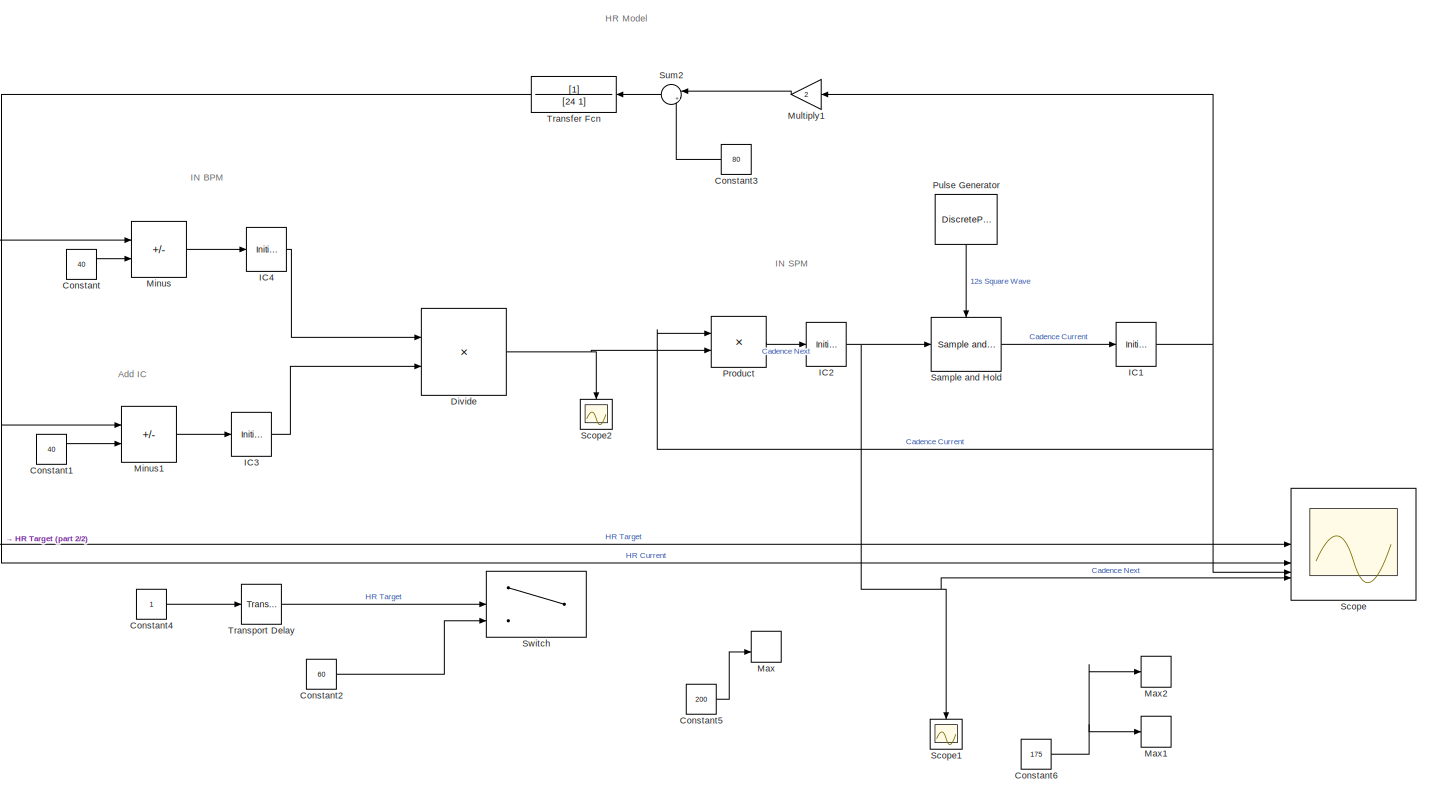
[diagram: root canvas - part 1/2, most of the canvas]
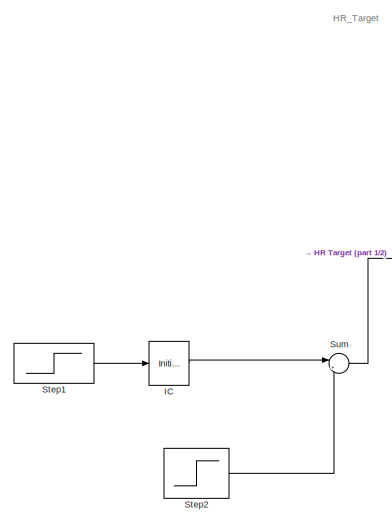
[diagram: root canvas - part 2/2, middle left region]
MODEL slx_c0230b98c511
KIND model
CONFIG AbsTol = auto
CONFIG EnableMultiTasking = off
CONFIG FixedStep = auto
CONFIG MaxStep = auto
CONFIG MinStep = auto
CONFIG RelTol = 1e-3
CONFIG SampleTimeConstraint = Unconstrained
CONFIG SolverName = VariableStepAuto
CONFIG StartTime = 0.0
CONFIG StopTime = 1000
BLOCK [Constant] Constant
  Value = 40
BLOCK [Constant] Constant1
  Value = 40
BLOCK [Constant] Constant2
  Value = 60
BLOCK [Constant] Constant3
  NameLocation = top
  Value = 80
BLOCK [Constant] Constant4
BLOCK [Constant] Constant5
  Value = 200
BLOCK [Constant] Constant6
  Value = 175
BLOCK [Product] Divide
  Inputs = */
BLOCK [InitialCondition] IC
  Value = 60
BLOCK [InitialCondition] IC1
  Value = 60
BLOCK [InitialCondition] IC2
  Value = 60
BLOCK [InitialCondition] IC3
  Value = 60
BLOCK [InitialCondition] IC4
  Value = 60
BLOCK [MinMax] Max
  Inputs = 2
BLOCK [MinMax] Max1
  Inputs = 2
BLOCK [MinMax] Max2
  Inputs = 2
BLOCK [Sum] Minus
  IconShape = rectangular
  Inputs = +-
BLOCK [Sum] Minus1
  IconShape = rectangular
  Inputs = +-
BLOCK [Gain] Multiply1
  Gain = 2
  NameLocation = top
BLOCK [Product] Product
BLOCK [DiscretePulseGenerator] Pulse Generator
  NameLocation = left
  Period = 10
  PulseType = Time based
  PulseWidth = 10
BLOCK [Reference] Sample and Hold  REF=dspsigops/Sample
and Hold
  LibrarySourceBlock = dsphdlsupportsigops/Sample\nand Hold
  SourceBlock = dspsigops/Sample\nand Hold
  SourceType = Sample and Hold
BLOCK [Scope] Scope
  Floating = off
  NumInputPorts = 4
  ScopeSpecificationString = Simulink.scopes.TimeScopeBlockCfg('CurrentConfiguration', extmgr.ConfigurationSet(extmgr.Configuration('Core','General UI',true,'FigureColor',[1 1 1]),extmgr.Configuration('Core','Source UI',true),extmgr.Configuration('Sources','WiredSimulink',true),extmgr.Configuration('Visuals','Time Domain',true,'SerializedDisplays',{struct('MinYLimReal','-3.106','MaxYLimReal','235.72753','YLabelReal','','MinYL...<+1588ch>
BLOCK [Scope] Scope1
  Floating = off
  NameLocation = left
  NumInputPorts = 1
  ScopeSpecificationString = Simulink.scopes.TimeScopeBlockCfg('CurrentConfiguration', extmgr.ConfigurationSet(extmgr.Configuration('Core','General UI',true),extmgr.Configuration('Core','Source UI',true),extmgr.Configuration('Sources','WiredSimulink',true,'DataLoggingVariableName','ScopeData1'),extmgr.Configuration('Visuals','Time Domain',true,'SerializedDisplays',{struct('MinYLimReal','-36.86419','MaxYLimReal','331.77768','Y...<+1465ch>
BLOCK [Scope] Scope2
  Floating = off
  NameLocation = left
  NumInputPorts = 1
  ScopeSpecificationString = Simulink.scopes.TimeScopeBlockCfg('CurrentConfiguration', extmgr.ConfigurationSet(extmgr.Configuration('Core','General UI',true),extmgr.Configuration('Core','Source UI',true),extmgr.Configuration('Sources','WiredSimulink',true,'DataLoggingVariableName','ScopeData2'),extmgr.Configuration('Visuals','Time Domain',true,'SerializedDisplays',{struct('MinYLimReal','0.01957','MaxYLimReal','4.80654','YLabe...<+1422ch>
BLOCK [Step] Step1
  After = 130
  SampleTime = 0
BLOCK [Step] Step2
  After = 50
  SampleTime = 0
  Time = 350
BLOCK [Sum] Sum
  Inputs = |++
BLOCK [Sum] Sum2
  Inputs = |++
  NameLocation = top
BLOCK [Switch] Switch
  Criteria = u2 > Threshold
  InputSameDT = off
  SaturateOnIntegerOverflow = off
  Threshold = 0.5
BLOCK [TransferFcn] Transfer Fcn
  Denominator = [24 1]
  NameLocation = top
BLOCK [TransportDelay] Transport Delay
  DelayTime = 15
ANNOTATION (root): HR Model
ANNOTATION (root): IN BPM
ANNOTATION (root): IN SPM
ANNOTATION (root): Add IC
ANNOTATION (root): HR_Target
LINE Constant1:1 -> Minus1:2
LINE Constant2:1 -> Switch:3
LINE Constant3:1 -> Sum2:2
LINE Constant4:1 -> Transport Delay:1
LINE Constant5:1 -> Max:2
NET Constant6:1 -> Max1:1, Max2:1
LINE Constant:1 -> Minus:2
NET Divide:1 -> Product:2, Scope2:1
NET IC1:1 -> Multiply1:1, Product:1, Scope:3
NET IC2:1 -> Sample and Hold:1, Scope1:1, Scope:4
LINE IC3:1 -> Divide:2
LINE IC4:1 -> Divide:1
LINE IC:1 -> Sum:1
LINE Minus1:1 -> IC3:1
LINE Minus:1 -> IC4:1
LINE Multiply1:1 -> Sum2:1
LINE Product:1 -> IC2:1
LINE Pulse Generator:1 -> Sample and Hold:trigger
LINE Sample and Hold:1 -> IC1:1
LINE Step1:1 -> IC:1
LINE Step2:1 -> Sum:2
LINE Sum2:1 -> Transfer Fcn:1
NET Sum:1 -> Minus:1, Scope:1
NET Transfer Fcn:1 -> Minus1:1, Scope:2
LINE Transport Delay:1 -> Switch:2
note: NET lines group one-source signal fan-out (src -> all destinations, sorted); 1:1 wires keep LINE
